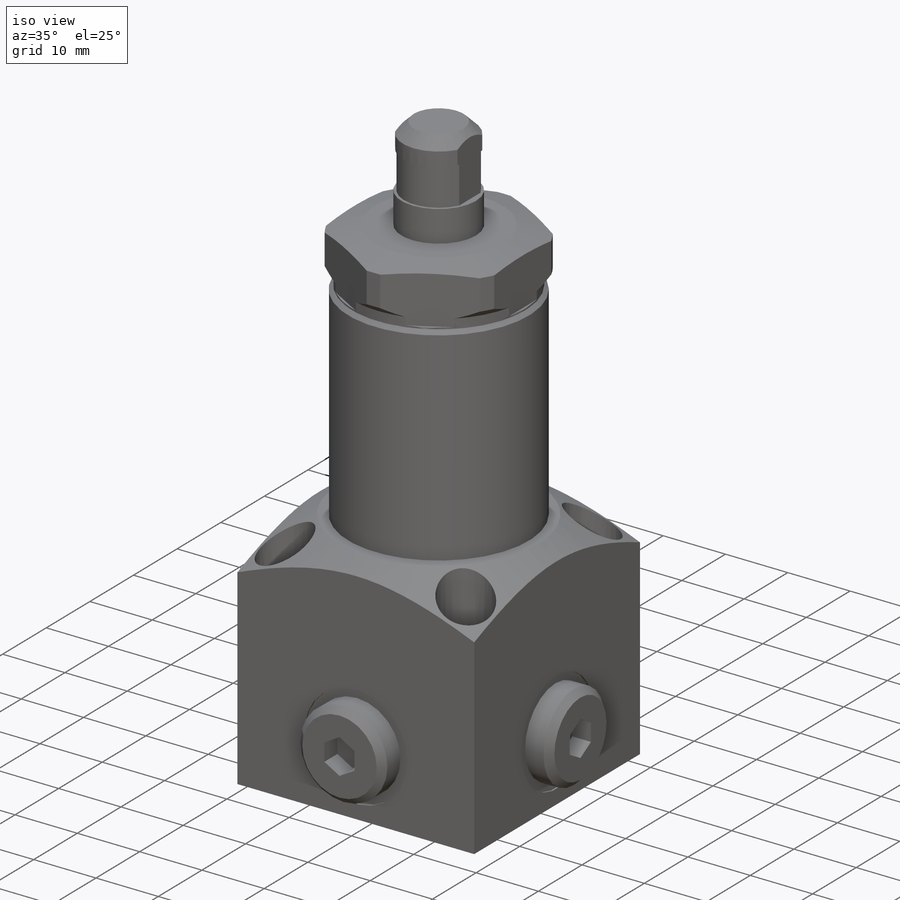
[diagram: iso view]
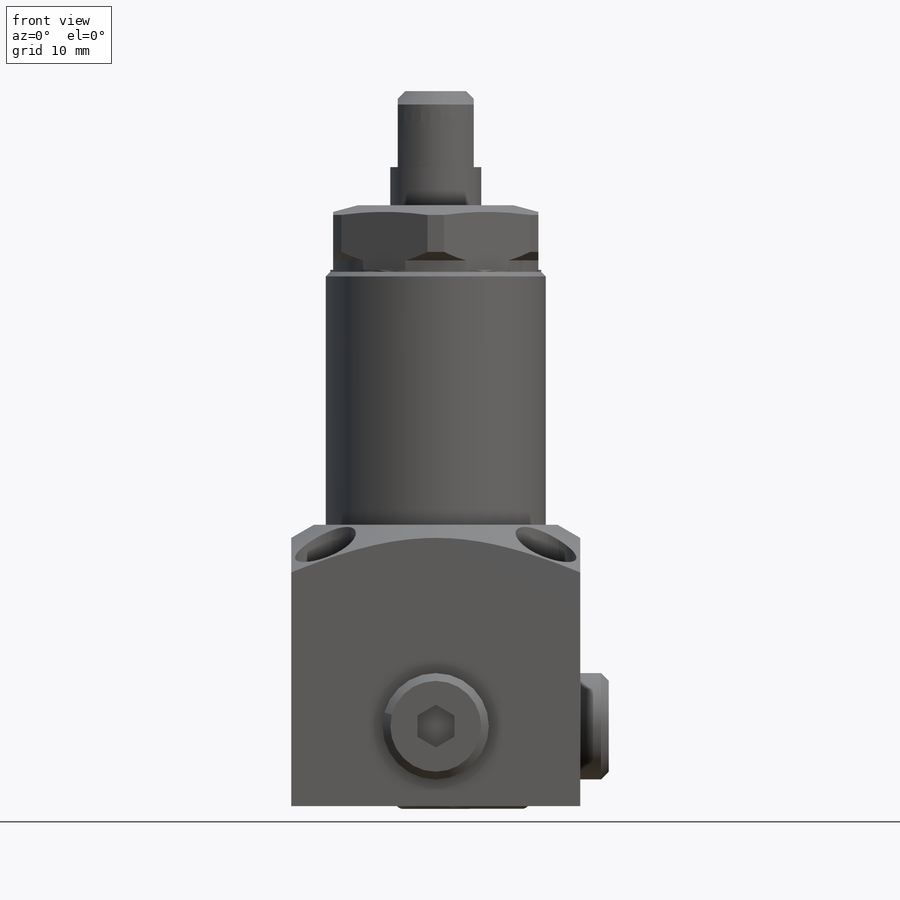
[diagram: front view]
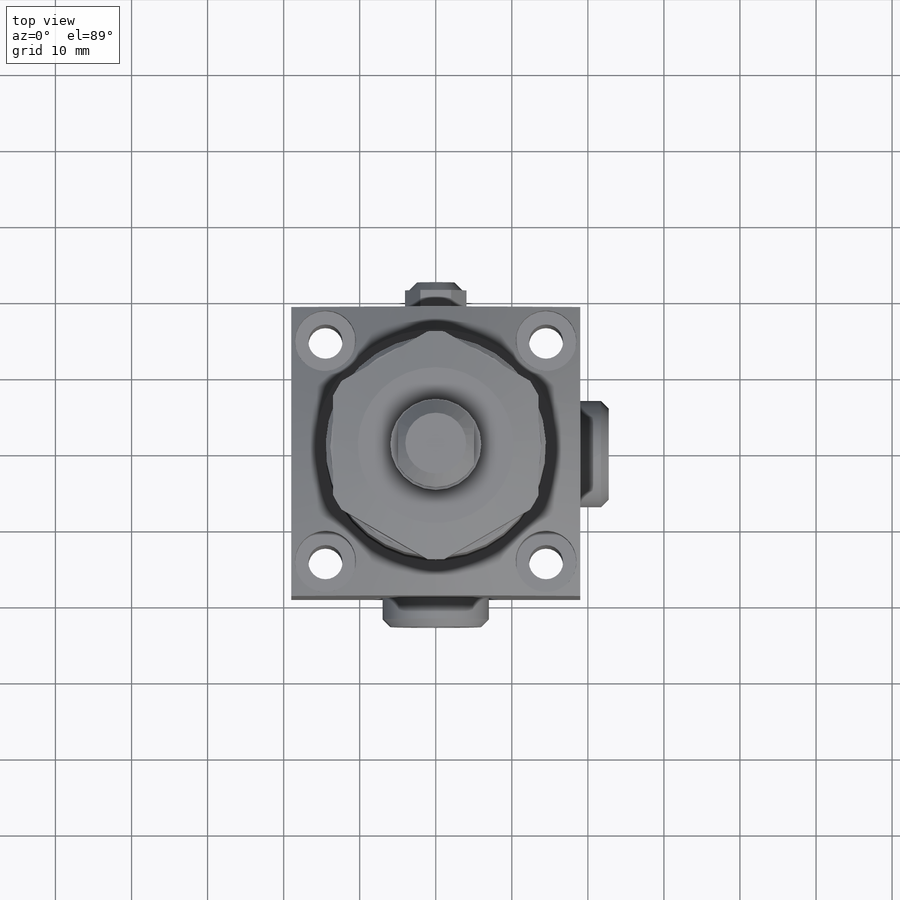
[diagram: top view]
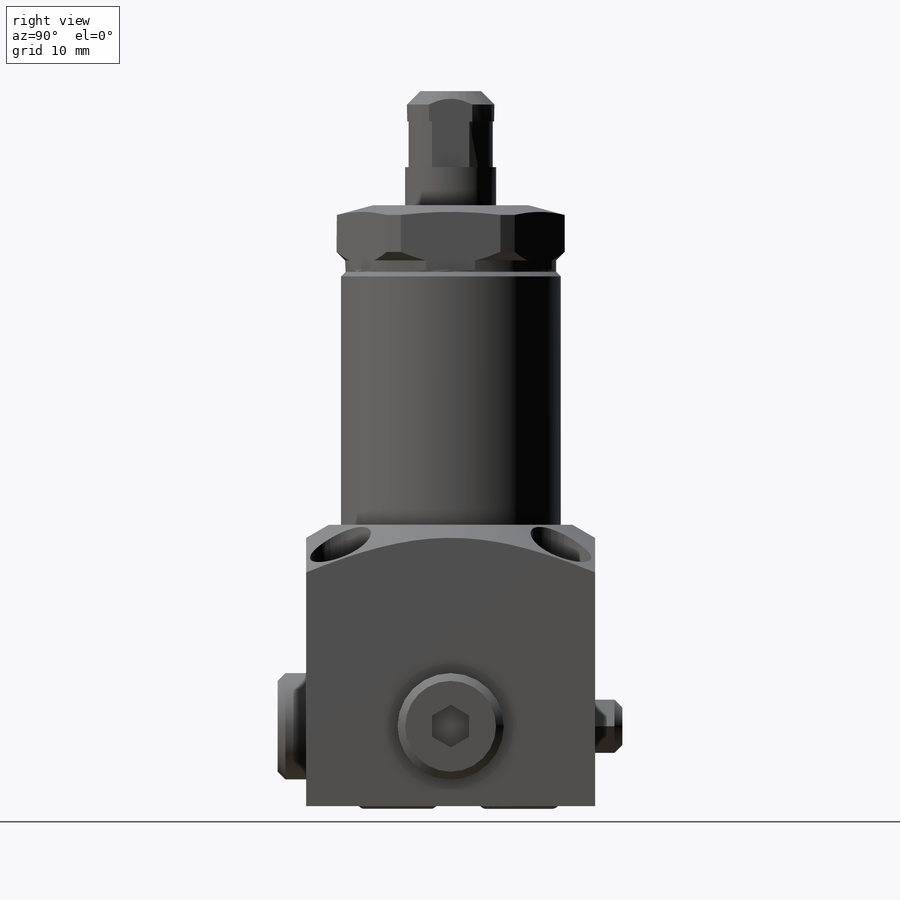
[diagram: right view]
SOLIDWORKS PART (.sldprt)
format: sldprt  version: not decoded by parser v0  size: 855,040 bytes
history: native  units: mm
features: sketch x29, cut_extrude x9, cut_revolve x9, plane x9, revolve x8, extrude x3, material x1 (+25 scaffold rows collapsed; 10 parser-record rows omitted)
feature tree (103):
  scaffold x25  (default folders/planes/origin — collapsed)
  material  "Material <not specified>"
  sketch  "Sketch1"  dims[D1=15.0mm D2=59.5mm]
  revolve  "Stock"  Angle=360deg
  sketch  "Sketch3"  dims[c1.D1=27.0mm c1.D3=30.0mm c2.D1=~25.655353mm c3.D1=120.0deg c4.D1=~24.842845mm c5.D1=120.0deg c5.D2=~24.735635mm c6.D2=120.0deg]
  cut_extrude  "HEX_HEAD"  Depth=8.5mm
  sketch  "Sketch4"  dims[c1.D1=10.25mm c1.D2=~10.421439mm c2.D2=15.0deg]
  cut_revolve  "CROWN"  Angle=360deg
  sketch  "Sketch5"  dims[c1.D1=14.125mm c1.D2=14.475mm c1.D3=6.91mm c1.D4=5.89mm c2.D4=45.0deg c2.D5=~2.541859mm c3.D5=45.0deg c4.D5=50.75mm c4.D6=1.5mm c4.D7=13.875mm c4.D8=~3.594731mm c5.D8=45.0deg]
  cut_revolve  "OD_PROFILE"  Angle=360deg
  sketch  "Sketch6"  dims[D1=2.5mm D2=14.0mm]
  revolve  "RETAINER"  Angle=360deg
  plane  "STROKE"  Offset=77mm
  plane  "MAX_STROKE"  Offset=81mm
  plane  "MIN_STROKE"  Offset=73mm
  parser-record x10  (decoder bookkeeping rows leaked as tree rows — omitted from the tree; the rows remain in map.json)
  sketch  "Sketch14"  dims[c1.D1=5.75mm c1.D2=4.0mm c1.D3=3.0mm c2.D3=45.0deg c2.D4=3.99mm]
  revolve  "Revolve1"  Angle=360deg
  sketch  "Sketch15"  dims[D1=10.0mm D2=5.0mm]
  cut_extrude  "Cut-Extrude1"  Depth=37mm
  sketch  "Sketch16"  dims[D1=11.96mm]
  extrude  "Extrude3"  [1 undecoded]
  sketch  "Sketch17"  dims[D1=0.41mm D2=5.99mm]
  cut_revolve  "Cut-Revolve1"  Angle=360deg
  sketch  "Sketch18"  dims[D1=10.0mm]
  cut_extrude  "Cut-Extrude2"  Depth=37mm
  plane  "BOTTOM_CM_BASE"  Offset=17mm
  sketch  "Sketch19"  dims[D1=19.0mm D2=38.0mm D3=19.0mm D4=38.0mm]
  extrude  "CM_BASE"  Depth=37mm
  plane  "COUNTER-BORE_DEPTH"  Offset=28mm
  sketch  "Sketch21"  dims[D3=8.0mm D1=14.5mm D2=14.5mm]
  cut_extrude  "Cut-Extrude3"  [1 undecoded]
  sketch  "Sketch22"  dims[D1=4.5mm D2=4.5mm D3=4.5mm D4=4.5mm]
  cut_extrude  "Cut-Extrude4"  [1 undecoded]
  plane  "BASE_CROWN_DATUM"
  sketch  "Sketch23"  dims[c1.D1=16.0mm c1.D2=~14.854479mm c2.D2=30.0deg]
  cut_revolve  "BASE_CROWN"  Angle=360deg
  plane  "Plane5"  Offset=10.5mm
  sketch  "Sketch26"  dims[c1.D1=10.566mm c1.D2=~2.68878mm c2.D2=59.0deg c2.D3=~8.949886mm c3.D3=45.0deg c3.D4=4.4195mm c3.D5=0.254mm c3.D6=4.953mm c3.D7=8.255mm]
  cut_revolve  "Cut-Revolve3"  Angle=360deg
  sketch  "Sketch28"  dims[D1=9.728mm]
  cut_extrude  "Cut-Extrude6"  Depth=7.391mm
  sketch  "Sketch30"  dims[c1.D1=~2.743286mm c2.D1=59.0deg c2.D2=10.566mm c2.D3=~1.696095mm c3.D3=45.0deg c3.D4=0.254mm c3.D5=4.953mm c3.D6=8.255mm c3.D7=4.4195mm]
  cut_revolve  "Cut-Revolve4"  Angle=360deg
  sketch  "Sketch31"  dims[D1=9.728mm]
  cut_extrude  "Cut-Extrude7"  Depth=7.391mm
  sketch  "Sketch32"  dims[c1.D1=~37.867299mm c2.D1=60.0deg c2.D2=12.0mm c2.D3=1.569mm c3.D3=45.0deg c3.D4=0.25mm c3.D5=6.0mm c3.D6=2.625mm c3.D7=2.1mm]
  cut_revolve  "HOLE_1"  Angle=360deg
  plane  "Plane6"  Offset=9mm
  sketch  "Sketch34"  dims[c1.D1=~47.066331mm c2.D1=60.0deg c2.D2=1.625mm c2.D3=~1.020121mm c3.D3=45.0deg c3.D4=1.45mm c3.D5=5.195mm c3.D6=12.0mm c3.D7=1.5mm]
  cut_revolve  "Cut-Revolve6"  Angle=360deg
  plane  "Plane7"  Offset=7mm
  sketch  "Sketch36"  dims[c1.D1=7.0mm c1.D2=~3.494802mm c2.D2=60.0deg c2.D3=1.45mm c2.D4=~0.369411mm c3.D4=45.0deg c3.D5=1.625mm c3.D6=5.0mm c3.D7=12.0mm c3.D8=1.5mm c4.D7=12.0mm c4.D9=0.875mm c4.D4=1.5mm c4.D8=3.375mm c5.D8=45.0deg]
  cut_revolve  "Cut-Revolve7"  Angle=360deg
  sketch  "Sketch38"  dims[c1.D3=1.9mm c1.D4=1.9mm c1.D1=9.0mm c1.D2=0.59mm c2.D4=4.35mm]
  revolve  "Revolve2"  Angle=360deg
  sketch  "Sketch39"  dims[c1.D2=1.9mm c1.D4=1.9mm c1.D1=7.0mm c1.D3=0.59mm c2.D4=4.35mm]
  revolve  "Revolve3"  Angle=360deg
  sketch  "Sketch40"  dims[c1.D1=4.0mm c1.D2=6.985mm c1.D3=6.985mm c1.D4=1.015mm c2.D4=45.0deg c2.D1=0.254mm c2.D2=5.97mm c2.D3=6.985mm c3.D4=1.015mm c4.D4=45.0deg c4.D5=4.0mm]
  revolve  "Revolve4"  Angle=360deg
  sketch  "Sketch48"  dims[c1.D1=4.857mm c1.D2=~5.315634mm c2.D2=120.0deg]
  cut_extrude  "Cut-Extrude11"  Depth=3mm
  sketch  "Sketch42"  dims[c1.D1=0.254mm c1.D2=4.0mm c1.D3=~2.540672mm c2.D3=45.0deg c2.D4=~9.772882mm c2.D5=5.97mm c2.D6=~9.772882mm c3.D4=6.985mm c3.D1=0.254mm c3.D2=4.0mm c3.D3=5.97mm c4.D4=6.985mm c4.D5=~2.944046mm c5.D5=45.0deg]
  revolve  "Revolve5"  Angle=360deg
  sketch  "Sketch43"  dims[c1.D1=4.857mm c1.D2=~2.671247mm c2.D2=120.0deg]
  cut_extrude  "Cut-Extrude10"  Depth=3mm
  sketch  "Sketch44"  dims[c1.D1=7.0mm c1.D2=~1.459188mm c2.D2=120.0deg]
  extrude  "Extrude5"  Depth=2.54mm
  sketch  "Sketch47"  dims[c1.D1=2.465mm c1.D2=2.465mm c2.D2=45.0deg]
  revolve  "Revolve6"  Angle=360deg
decode coverage: 55 of 58 modeling features carry decoded parameters
note: ~ marks probable driven/reference dimensions
note: 3 parameter values undecoded
summary: no parameter record found for 3 features
note: suppression state not decoded; provenance and decode notes live in map.json
